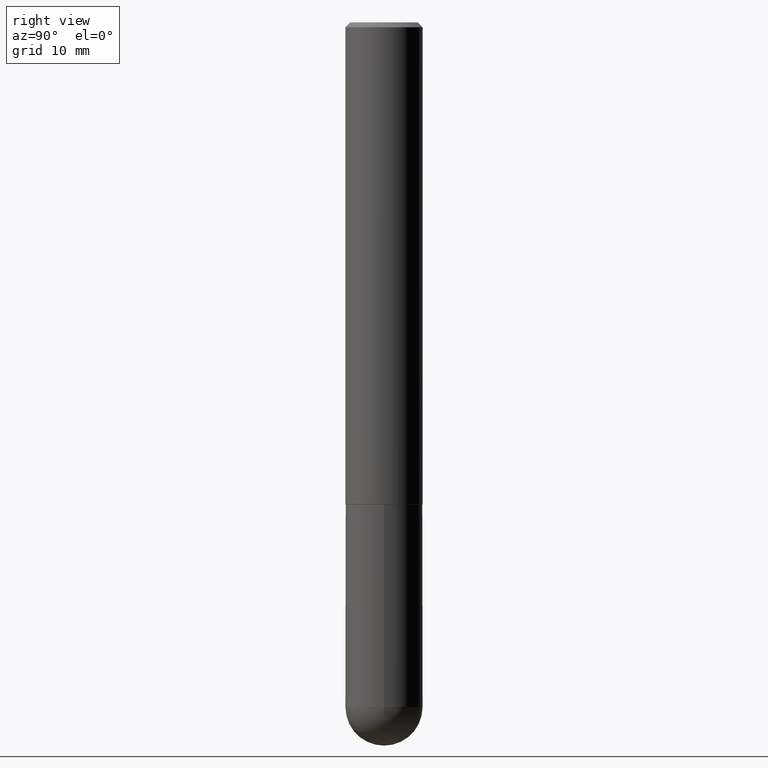
[diagram: clean part render]
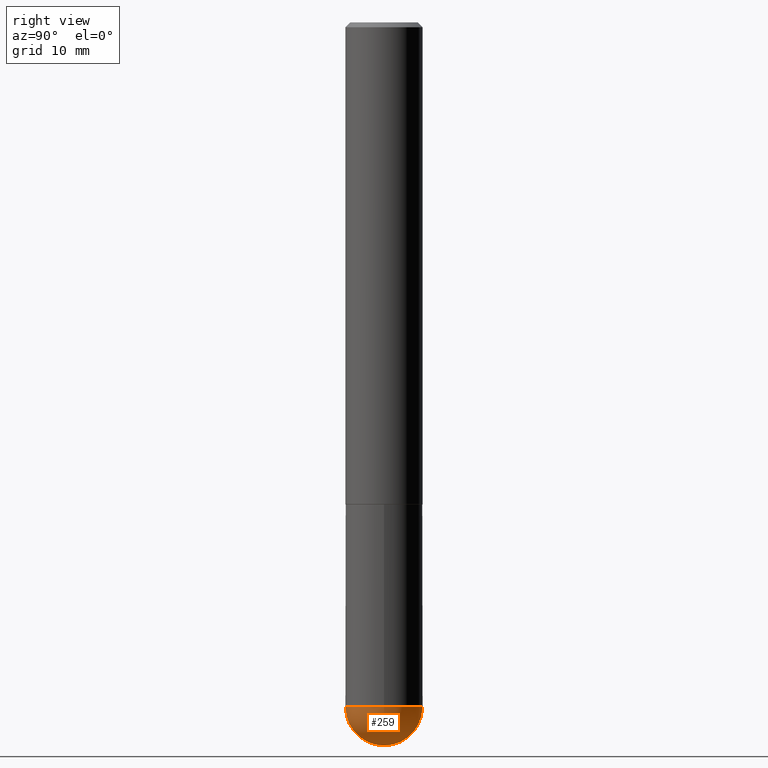
[diagram: same view with one face highlighted and labeled with its STEP entity id]
A machine part, right view. The second image highlights one B-rep face of the part: STEP entity #259.
In plain terms, the highlighted spherical surface has radius 4.0005 mm.
Its self-contained STEP definition (entity closure, byte-faithful):
#12 = ORIENTED_EDGE ( 'NONE', *, *, #252, .F. ) ;
#32 = CARTESIAN_POINT ( 'NONE',  ( 6.504699176015425459E-29, -1.023392015460829390E-14, -2.795299999999999674 ) ) ;
#40 = ORIENTED_EDGE ( 'NONE', *, *, #183, .F. ) ;
#44 = AXIS2_PLACEMENT_3D ( 'NONE', #32, #128, #379 ) ;
#55 = DIRECTION ( 'NONE',  ( 1.000000000000000000, -6.982962677686261977E-15, 0.000000000000000000 ) ) ;
#58 = AXIS2_PLACEMENT_3D ( 'NONE', #123, #68, #403 ) ;
#63 = DIRECTION ( 'NONE',  ( 1.000000000000000000, -6.982962677686261977E-15, 0.000000000000000000 ) ) ;
#66 = CARTESIAN_POINT ( 'NONE',  ( 6.896594947516873652E-29, -1.077418437193280573E-14, -2.952799999999999869 ) ) ;
#68 = DIRECTION ( 'NONE',  ( -1.000000000000000000, 6.982962677686265922E-15, -4.883557194083112901E-29 ) ) ;
#88 = AXIS2_PLACEMENT_3D ( 'NONE', #174, #148, #55 ) ;
#93 = CARTESIAN_POINT ( 'NONE',  ( 0.1575000000000000011, -9.416176022726072770E-15, -2.795299999999999674 ) ) ;
#123 = CARTESIAN_POINT ( 'NONE',  ( 6.504699176015425459E-29, -1.023392015460829390E-14, -2.795299999999999674 ) ) ;
#128 = DIRECTION ( 'NONE',  ( -1.000000000000000000, 7.105427357601001070E-15, -4.926315508542082329E-29 ) ) ;
#138 = EDGE_CURVE ( 'NONE', #232, #266, #341, .T. ) ;
#148 = DIRECTION ( 'NONE',  ( -2.445468806185136597E-29, 3.491481338843145583E-15, 1.000000000000000000 ) ) ;
#154 = CARTESIAN_POINT ( 'NONE',  ( 6.504699176015425459E-29, -1.023392015460829390E-14, -2.795299999999999674 ) ) ;
#156 = CARTESIAN_POINT ( 'NONE',  ( 6.835818953929311707E-29, -9.759737786468243605E-15, -2.795299999999999674 ) ) ;
#162 = EDGE_LOOP ( 'NONE', ( #40, #328, #227, #12 ) ) ;
#174 = CARTESIAN_POINT ( 'NONE',  ( 6.835818953929311707E-29, -9.759737786468243605E-15, -2.795299999999999674 ) ) ;
#177 = AXIS2_PLACEMENT_3D ( 'NONE', #154, #250, #221 ) ;
#181 = SPHERICAL_SURFACE ( 'NONE', #58, 0.1575000000000003064 ) ;
#183 = EDGE_CURVE ( 'NONE', #197, #222, #380, .T. ) ;
#197 = VERTEX_POINT ( 'NONE', #66 ) ;
#209 = EDGE_CURVE ( 'NONE', #197, #266, #268, .T. ) ;
#219 = DIRECTION ( 'NONE',  ( -2.445468806185136597E-29, 3.491481338843145583E-15, 1.000000000000000000 ) ) ;
#221 = DIRECTION ( 'NONE',  ( 6.982962677686265133E-15, 1.000000000000000000, 0.000000000000000000 ) ) ;
#222 = VERTEX_POINT ( 'NONE', #381 ) ;
#227 = ORIENTED_EDGE ( 'NONE', *, *, #138, .F. ) ;
#232 = VERTEX_POINT ( 'NONE', #93 ) ;
#236 = CIRCLE ( 'NONE', #288, 0.1575000000000000011 ) ;
#250 = DIRECTION ( 'NONE',  ( 1.000000000000000000, -6.982962677686265922E-15, 4.883557194083112340E-29 ) ) ;
#252 = EDGE_CURVE ( 'NONE', #222, #232, #236, .T. ) ;
#259 = ADVANCED_FACE ( 'NONE', ( #354 ), #181, .T. ) ;
#266 = VERTEX_POINT ( 'NONE', #287 ) ;
#268 = CIRCLE ( 'NONE', #177, 0.1575000000000003064 ) ;
#287 = CARTESIAN_POINT ( 'NONE',  ( 1.099816621735654731E-15, 0.1574999999999901201, -2.795300000000000118 ) ) ;
#288 = AXIS2_PLACEMENT_3D ( 'NONE', #156, #219, #63 ) ;
#328 = ORIENTED_EDGE ( 'NONE', *, *, #209, .T. ) ;
#341 = CIRCLE ( 'NONE', #88, 0.1575000000000000011 ) ;
#354 = FACE_OUTER_BOUND ( 'NONE', #162, .T. ) ;
#379 = DIRECTION ( 'NONE',  ( -7.105427357601000281E-15, -1.000000000000000000, 0.000000000000000000 ) ) ;
#380 = CIRCLE ( 'NONE', #44, 0.1575000000000003064 ) ;
#381 = CARTESIAN_POINT ( 'NONE',  ( -1.119104808822091931E-15, -0.1575000000000101319, -2.795299999999998786 ) ) ;
#403 = DIRECTION ( 'NONE',  ( 6.982962677686265922E-15, 1.000000000000000000, -3.469013325287946588E-15 ) ) ;